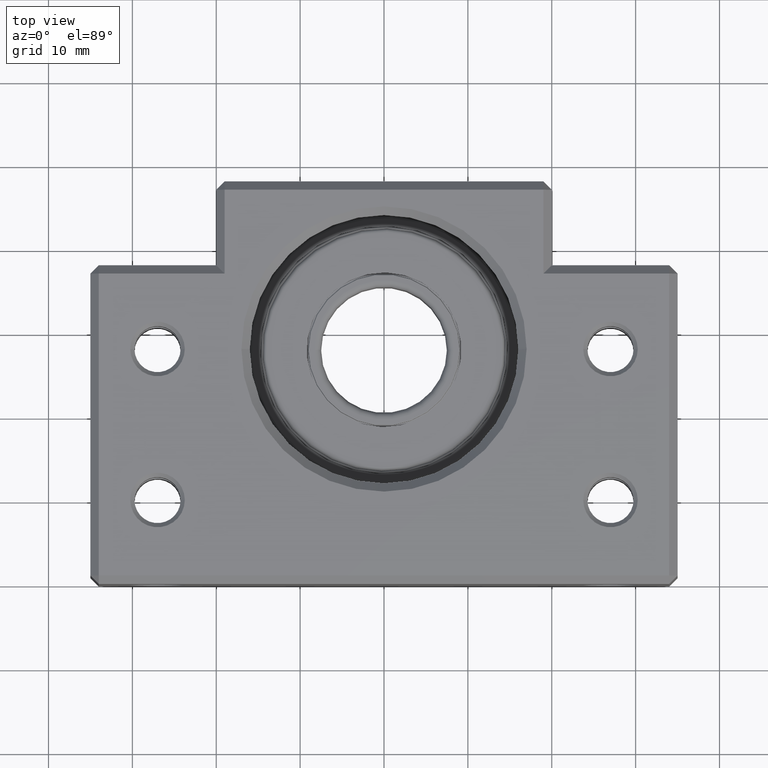
[diagram: clean part render]
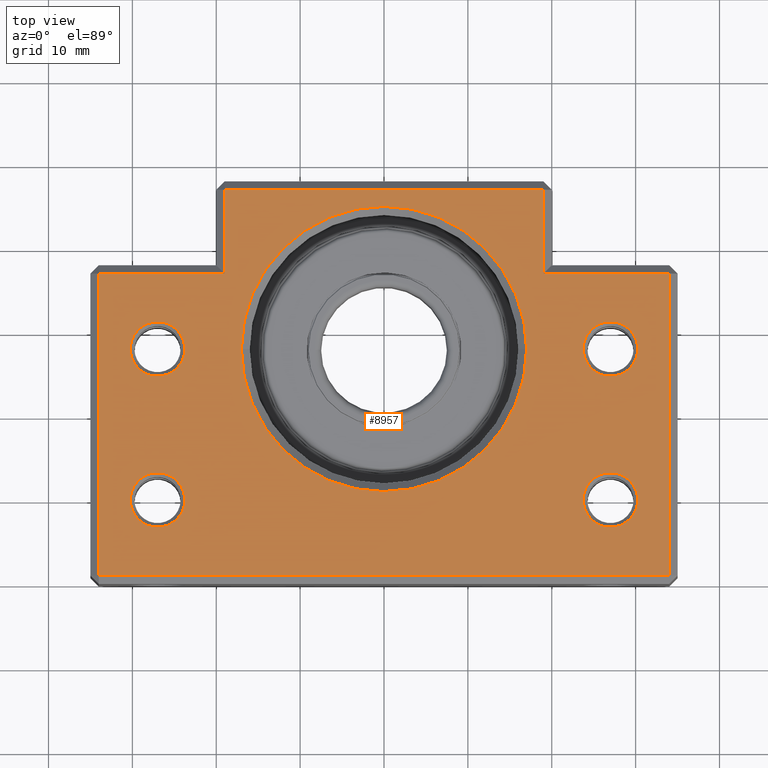
[diagram: same view with one face highlighted and labeled with its STEP entity id]
A machine part, top view. The second image highlights one B-rep face of the part: STEP entity #8957.
In plain terms, the highlighted planar face has unit normal (-0, 0, 1).
Its self-contained STEP definition (entity closure, byte-faithful):
#6 = ORIENTED_EDGE ( 'NONE', *, *, #9552, .T. ) ;
#21 = EDGE_CURVE ( 'NONE', #9291, #28, #1987, .T. ) ;
#24 = ORIENTED_EDGE ( 'NONE', *, *, #21, .T. ) ;
#28 = VERTEX_POINT ( 'NONE', #2044 ) ;
#794 = EDGE_CURVE ( 'NONE', #796, #800, #3411, .T. ) ;
#796 = VERTEX_POINT ( 'NONE', #3405 ) ;
#800 = VERTEX_POINT ( 'NONE', #3399 ) ;
#886 = VERTEX_POINT ( 'NONE', #3546 ) ;
#888 = EDGE_CURVE ( 'NONE', #889, #886, #3545, .T. ) ;
#889 = VERTEX_POINT ( 'NONE', #3540 ) ;
#904 = VERTEX_POINT ( 'NONE', #3571 ) ;
#906 = VERTEX_POINT ( 'NONE', #3570 ) ;
#950 = VERTEX_POINT ( 'NONE', #3671 ) ;
#961 = EDGE_CURVE ( 'NONE', #906, #904, #3702, .T. ) ;
#973 = VERTEX_POINT ( 'NONE', #3744 ) ;
#975 = EDGE_CURVE ( 'NONE', #950, #973, #3743, .T. ) ;
#976 = VERTEX_POINT ( 'NONE', #3738 ) ;
#978 = EDGE_CURVE ( 'NONE', #979, #976, #3737, .T. ) ;
#979 = VERTEX_POINT ( 'NONE', #3732 ) ;
#1986 = CARTESIAN_POINT ( 'NONE',  ( 20.00000000000001800, 36.99999999999999300, 10.00000000000000000 ) ) ;
#1987 = LINE ( 'NONE', #1986, #2050 ) ;
#2044 = CARTESIAN_POINT ( 'NONE',  ( 19.00000000000000400, 36.99999999999999300, 10.00000000000000000 ) ) ;
#2049 = DIRECTION ( 'NONE',  ( -1.000000000000000000, 0.0000000000000000000, -0.0000000000000000000 ) ) ;
#2050 = VECTOR ( 'NONE', #2049, 1000.000000000000000 ) ;
#3399 = CARTESIAN_POINT ( 'NONE',  ( 23.75000000000001400, 10.00000000000000500, 10.00000000000000000 ) ) ;
#3405 = CARTESIAN_POINT ( 'NONE',  ( 30.25000000000000700, 10.00000000000000500, 10.00000000000000000 ) ) ;
#3407 = DIRECTION ( 'NONE',  ( 1.000000000000000000, 0.0000000000000000000, 0.0000000000000000000 ) ) ;
#3408 = DIRECTION ( 'NONE',  ( 0.0000000000000000000, -0.0000000000000000000, -1.000000000000000000 ) ) ;
#3409 = CARTESIAN_POINT ( 'NONE',  ( 27.00000000000001100, 10.00000000000000500, 10.00000000000000000 ) ) ;
#3410 = AXIS2_PLACEMENT_3D ( 'NONE', #3409, #3408, #3407 ) ;
#3411 = CIRCLE ( 'NONE', #3410, 3.249999999999999600 ) ;
#3540 = CARTESIAN_POINT ( 'NONE',  ( 16.99999999999999300, 27.99999999999999600, 10.00000000000000000 ) ) ;
#3541 = DIRECTION ( 'NONE',  ( 1.000000000000000000, 0.0000000000000000000, 0.0000000000000000000 ) ) ;
#3542 = DIRECTION ( 'NONE',  ( 0.0000000000000000000, -0.0000000000000000000, -1.000000000000000000 ) ) ;
#3543 = CARTESIAN_POINT ( 'NONE',  ( 1.369502252791130900E-014, 27.99999999999999600, 10.00000000000000000 ) ) ;
#3544 = AXIS2_PLACEMENT_3D ( 'NONE', #3543, #3542, #3541 ) ;
#3545 = CIRCLE ( 'NONE', #3544, 16.99999999999997900 ) ;
#3546 = CARTESIAN_POINT ( 'NONE',  ( -16.99999999999996800, 28.00000000000000000, 10.00000000000000000 ) ) ;
#3570 = CARTESIAN_POINT ( 'NONE',  ( -23.75000000000000000, 9.999999999999998200, 10.00000000000000000 ) ) ;
#3571 = CARTESIAN_POINT ( 'NONE',  ( -30.24999999999999300, 9.999999999999998200, 10.00000000000000000 ) ) ;
#3671 = CARTESIAN_POINT ( 'NONE',  ( 30.25000000000000000, 28.00000000000000400, 10.00000000000000000 ) ) ;
#3698 = DIRECTION ( 'NONE',  ( 1.000000000000000000, 0.0000000000000000000, 0.0000000000000000000 ) ) ;
#3699 = DIRECTION ( 'NONE',  ( 0.0000000000000000000, -0.0000000000000000000, -1.000000000000000000 ) ) ;
#3700 = CARTESIAN_POINT ( 'NONE',  ( -26.99999999999999600, 9.999999999999998200, 10.00000000000000000 ) ) ;
#3701 = AXIS2_PLACEMENT_3D ( 'NONE', #3700, #3699, #3698 ) ;
#3702 = CIRCLE ( 'NONE', #3701, 3.249999999999999600 ) ;
#3732 = CARTESIAN_POINT ( 'NONE',  ( -23.75000000000000000, 27.99999999999999600, 10.00000000000000000 ) ) ;
#3733 = DIRECTION ( 'NONE',  ( 1.000000000000000000, 0.0000000000000000000, 0.0000000000000000000 ) ) ;
#3734 = DIRECTION ( 'NONE',  ( 0.0000000000000000000, -0.0000000000000000000, -1.000000000000000000 ) ) ;
#3735 = CARTESIAN_POINT ( 'NONE',  ( -26.99999999999999600, 27.99999999999999600, 10.00000000000000000 ) ) ;
#3736 = AXIS2_PLACEMENT_3D ( 'NONE', #3735, #3734, #3733 ) ;
#3737 = CIRCLE ( 'NONE', #3736, 3.249999999999999600 ) ;
#3738 = CARTESIAN_POINT ( 'NONE',  ( -30.24999999999999300, 27.99999999999999600, 10.00000000000000000 ) ) ;
#3739 = DIRECTION ( 'NONE',  ( 1.000000000000000000, 0.0000000000000000000, 0.0000000000000000000 ) ) ;
#3740 = DIRECTION ( 'NONE',  ( 0.0000000000000000000, -0.0000000000000000000, -1.000000000000000000 ) ) ;
#3741 = CARTESIAN_POINT ( 'NONE',  ( 27.00000000000000400, 28.00000000000000400, 10.00000000000000000 ) ) ;
#3742 = AXIS2_PLACEMENT_3D ( 'NONE', #3741, #3740, #3739 ) ;
#3743 = CIRCLE ( 'NONE', #3742, 3.249999999999999600 ) ;
#3744 = CARTESIAN_POINT ( 'NONE',  ( 23.75000000000000700, 28.00000000000000400, 10.00000000000000000 ) ) ;
#6714 = DIRECTION ( 'NONE',  ( 1.000000000000000000, 0.0000000000000000000, 0.0000000000000000000 ) ) ;
#6715 = DIRECTION ( 'NONE',  ( 0.0000000000000000000, -0.0000000000000000000, -1.000000000000000000 ) ) ;
#6716 = CARTESIAN_POINT ( 'NONE',  ( 27.00000000000000400, 28.00000000000000400, 10.00000000000000000 ) ) ;
#6717 = AXIS2_PLACEMENT_3D ( 'NONE', #6716, #6715, #6714 ) ;
#6718 = CIRCLE ( 'NONE', #6717, 3.249999999999999600 ) ;
#6785 = DIRECTION ( 'NONE',  ( 1.000000000000000000, 0.0000000000000000000, 0.0000000000000000000 ) ) ;
#6786 = DIRECTION ( 'NONE',  ( 0.0000000000000000000, -0.0000000000000000000, -1.000000000000000000 ) ) ;
#6787 = CARTESIAN_POINT ( 'NONE',  ( 27.00000000000001100, 10.00000000000000500, 10.00000000000000000 ) ) ;
#6788 = AXIS2_PLACEMENT_3D ( 'NONE', #6787, #6786, #6785 ) ;
#6789 = CIRCLE ( 'NONE', #6788, 3.249999999999999600 ) ;
#7203 = FACE_BOUND ( 'NONE', #9149, .T. ) ;
#7239 = DIRECTION ( 'NONE',  ( 1.000000000000000000, 0.0000000000000000000, 0.0000000000000000000 ) ) ;
#7240 = DIRECTION ( 'NONE',  ( -0.0000000000000000000, 0.0000000000000000000, 1.000000000000000000 ) ) ;
#7241 = AXIS2_PLACEMENT_3D ( 'NONE', #7243, #7240, #7239 ) ;
#7243 = CARTESIAN_POINT ( 'NONE',  ( -34.99999999999999300, 0.0000000000000000000, 10.00000000000000000 ) ) ;
#7244 = PLANE ( 'NONE',  #7241 ) ;
#7245 = FACE_OUTER_BOUND ( 'NONE', #9054, .T. ) ;
#7254 = FACE_BOUND ( 'NONE', #9125, .T. ) ;
#7255 = FACE_BOUND ( 'NONE', #9257, .T. ) ;
#7256 = FACE_BOUND ( 'NONE', #8696, .T. ) ;
#7257 = FACE_BOUND ( 'NONE', #8729, .T. ) ;
#7320 = LINE ( 'NONE', #7365, #7364 ) ;
#7324 = CARTESIAN_POINT ( 'NONE',  ( 18.99999999999999600, 46.99999999999998600, 10.00000000000000000 ) ) ;
#7363 = DIRECTION ( 'NONE',  ( -1.000000000000000000, -1.734723475976807100E-016, 0.0000000000000000000 ) ) ;
#7364 = VECTOR ( 'NONE', #7363, 1000.000000000000000 ) ;
#7365 = CARTESIAN_POINT ( 'NONE',  ( -19.99999999999998900, 46.99999999999997900, 10.00000000000000000 ) ) ;
#7518 = DIRECTION ( 'NONE',  ( 1.000000000000000000, 0.0000000000000000000, 0.0000000000000000000 ) ) ;
#7519 = DIRECTION ( 'NONE',  ( 0.0000000000000000000, -0.0000000000000000000, -1.000000000000000000 ) ) ;
#7520 = CARTESIAN_POINT ( 'NONE',  ( 1.369502252791130900E-014, 27.99999999999999600, 10.00000000000000000 ) ) ;
#7521 = AXIS2_PLACEMENT_3D ( 'NONE', #7520, #7519, #7518 ) ;
#7522 = CIRCLE ( 'NONE', #7521, 16.99999999999997900 ) ;
#7605 = DIRECTION ( 'NONE',  ( 1.000000000000000000, 0.0000000000000000000, 0.0000000000000000000 ) ) ;
#7606 = DIRECTION ( 'NONE',  ( 0.0000000000000000000, -0.0000000000000000000, -1.000000000000000000 ) ) ;
#7607 = CARTESIAN_POINT ( 'NONE',  ( -26.99999999999999600, 27.99999999999999600, 10.00000000000000000 ) ) ;
#7608 = AXIS2_PLACEMENT_3D ( 'NONE', #7607, #7606, #7605 ) ;
#7609 = CIRCLE ( 'NONE', #7608, 3.249999999999999600 ) ;
#7838 = DIRECTION ( 'NONE',  ( 1.000000000000000000, 0.0000000000000000000, 0.0000000000000000000 ) ) ;
#7839 = DIRECTION ( 'NONE',  ( 0.0000000000000000000, -0.0000000000000000000, -1.000000000000000000 ) ) ;
#7840 = CARTESIAN_POINT ( 'NONE',  ( -26.99999999999999600, 9.999999999999998200, 10.00000000000000000 ) ) ;
#7841 = AXIS2_PLACEMENT_3D ( 'NONE', #7840, #7839, #7838 ) ;
#7842 = CIRCLE ( 'NONE', #7841, 3.249999999999999600 ) ;
#7851 = CARTESIAN_POINT ( 'NONE',  ( 34.00000000000000700, 36.99999999999999300, 10.00000000000000000 ) ) ;
#7858 = DIRECTION ( 'NONE',  ( 1.826024711554534200E-016, 1.000000000000000000, 0.0000000000000000000 ) ) ;
#7859 = VECTOR ( 'NONE', #7858, 1000.000000000000000 ) ;
#7860 = CARTESIAN_POINT ( 'NONE',  ( 34.00000000000000700, 38.00000000000000700, 10.00000000000000000 ) ) ;
#7861 = LINE ( 'NONE', #7860, #7859 ) ;
#7901 = DIRECTION ( 'NONE',  ( 1.000000000000000000, 1.224646799147353200E-016, 0.0000000000000000000 ) ) ;
#7902 = VECTOR ( 'NONE', #7901, 1000.000000000000000 ) ;
#7903 = CARTESIAN_POINT ( 'NONE',  ( 35.00000000000001400, 1.000000000000023500, 10.00000000000000000 ) ) ;
#7904 = LINE ( 'NONE', #7903, #7902 ) ;
#7910 = CARTESIAN_POINT ( 'NONE',  ( 34.00000000000000000, 1.000000000000023300, 10.00000000000000000 ) ) ;
#7946 = DIRECTION ( 'NONE',  ( 1.826024711554534200E-016, -1.000000000000000000, 0.0000000000000000000 ) ) ;
#7947 = VECTOR ( 'NONE', #7946, 1000.000000000000000 ) ;
#7948 = CARTESIAN_POINT ( 'NONE',  ( -33.99999999999996400, 1.826024711554573800E-016, 10.00000000000000000 ) ) ;
#7949 = LINE ( 'NONE', #7948, #7947 ) ;
#7951 = CARTESIAN_POINT ( 'NONE',  ( -33.99999999999996400, 1.000000000000014900, 10.00000000000000000 ) ) ;
#8008 = CARTESIAN_POINT ( 'NONE',  ( -18.99999999999998900, 36.99999999999998600, 10.00000000000000000 ) ) ;
#8009 = DIRECTION ( 'NONE',  ( 0.0000000000000000000, -1.000000000000000000, 0.0000000000000000000 ) ) ;
#8010 = VECTOR ( 'NONE', #8009, 1000.000000000000000 ) ;
#8011 = CARTESIAN_POINT ( 'NONE',  ( -18.99999999999998900, 38.00000000000000000, 10.00000000000000000 ) ) ;
#8012 = LINE ( 'NONE', #8011, #8010 ) ;
#8019 = DIRECTION ( 'NONE',  ( -1.000000000000000000, 0.0000000000000000000, -0.0000000000000000000 ) ) ;
#8020 = VECTOR ( 'NONE', #8019, 1000.000000000000000 ) ;
#8021 = CARTESIAN_POINT ( 'NONE',  ( -34.99999999999999300, 36.99999999999998600, 10.00000000000000000 ) ) ;
#8022 = LINE ( 'NONE', #8021, #8020 ) ;
#8027 = CARTESIAN_POINT ( 'NONE',  ( -33.99999999999997200, 36.99999999999998600, 10.00000000000000000 ) ) ;
#8242 = CARTESIAN_POINT ( 'NONE',  ( -18.99999999999998900, 46.99999999999997900, 10.00000000000000000 ) ) ;
#8255 = CARTESIAN_POINT ( 'NONE',  ( 18.99999999999999600, 48.00000000000000700, 10.00000000000000000 ) ) ;
#8280 = DIRECTION ( 'NONE',  ( -6.938893903907227400E-016, 1.000000000000000000, 0.0000000000000000000 ) ) ;
#8281 = VECTOR ( 'NONE', #8280, 1000.000000000000000 ) ;
#8283 = LINE ( 'NONE', #8255, #8281 ) ;
#8696 = EDGE_LOOP ( 'NONE', ( #8700, #9272 ) ) ;
#8700 = ORIENTED_EDGE ( 'NONE', *, *, #961, .T. ) ;
#8704 = EDGE_CURVE ( 'NONE', #973, #950, #6718, .T. ) ;
#8706 = ORIENTED_EDGE ( 'NONE', *, *, #8704, .T. ) ;
#8714 = ORIENTED_EDGE ( 'NONE', *, *, #975, .T. ) ;
#8729 = EDGE_LOOP ( 'NONE', ( #8714, #8706 ) ) ;
#8731 = EDGE_CURVE ( 'NONE', #800, #796, #6789, .T. ) ;
#8732 = ORIENTED_EDGE ( 'NONE', *, *, #794, .T. ) ;
#8733 = ORIENTED_EDGE ( 'NONE', *, *, #8731, .T. ) ;
#8957 = ADVANCED_FACE ( 'NONE', ( #7203, #7257, #7256, #7255, #7254, #7245 ), #7244, .T. ) ;
#9003 = VERTEX_POINT ( 'NONE', #7324 ) ;
#9009 = EDGE_CURVE ( 'NONE', #9003, #9533, #7320, .T. ) ;
#9024 = ORIENTED_EDGE ( 'NONE', *, *, #9009, .T. ) ;
#9054 = EDGE_LOOP ( 'NONE', ( #9024, #9410, #9374, #9360, #9317, #9288, #24, #6 ) ) ;
#9112 = ORIENTED_EDGE ( 'NONE', *, *, #9113, .T. ) ;
#9113 = EDGE_CURVE ( 'NONE', #886, #889, #7522, .T. ) ;
#9124 = ORIENTED_EDGE ( 'NONE', *, *, #888, .T. ) ;
#9125 = EDGE_LOOP ( 'NONE', ( #9124, #9112 ) ) ;
#9149 = EDGE_LOOP ( 'NONE', ( #8732, #8733 ) ) ;
#9151 = ORIENTED_EDGE ( 'NONE', *, *, #9152, .T. ) ;
#9152 = EDGE_CURVE ( 'NONE', #976, #979, #7609, .T. ) ;
#9257 = EDGE_LOOP ( 'NONE', ( #9432, #9151 ) ) ;
#9260 = EDGE_CURVE ( 'NONE', #904, #906, #7842, .T. ) ;
#9272 = ORIENTED_EDGE ( 'NONE', *, *, #9260, .T. ) ;
#9287 = EDGE_CURVE ( 'NONE', #9293, #9291, #7861, .T. ) ;
#9288 = ORIENTED_EDGE ( 'NONE', *, *, #9287, .T. ) ;
#9291 = VERTEX_POINT ( 'NONE', #7851 ) ;
#9293 = VERTEX_POINT ( 'NONE', #7910 ) ;
#9297 = EDGE_CURVE ( 'NONE', #9331, #9293, #7904, .T. ) ;
#9317 = ORIENTED_EDGE ( 'NONE', *, *, #9297, .T. ) ;
#9331 = VERTEX_POINT ( 'NONE', #7951 ) ;
#9332 = EDGE_CURVE ( 'NONE', #9366, #9331, #7949, .T. ) ;
#9360 = ORIENTED_EDGE ( 'NONE', *, *, #9332, .T. ) ;
#9366 = VERTEX_POINT ( 'NONE', #8027 ) ;
#9368 = EDGE_CURVE ( 'NONE', #9384, #9366, #8022, .T. ) ;
#9374 = ORIENTED_EDGE ( 'NONE', *, *, #9368, .T. ) ;
#9383 = EDGE_CURVE ( 'NONE', #9533, #9384, #8012, .T. ) ;
#9384 = VERTEX_POINT ( 'NONE', #8008 ) ;
#9410 = ORIENTED_EDGE ( 'NONE', *, *, #9383, .T. ) ;
#9432 = ORIENTED_EDGE ( 'NONE', *, *, #978, .T. ) ;
#9533 = VERTEX_POINT ( 'NONE', #8242 ) ;
#9552 = EDGE_CURVE ( 'NONE', #28, #9003, #8283, .T. ) ;